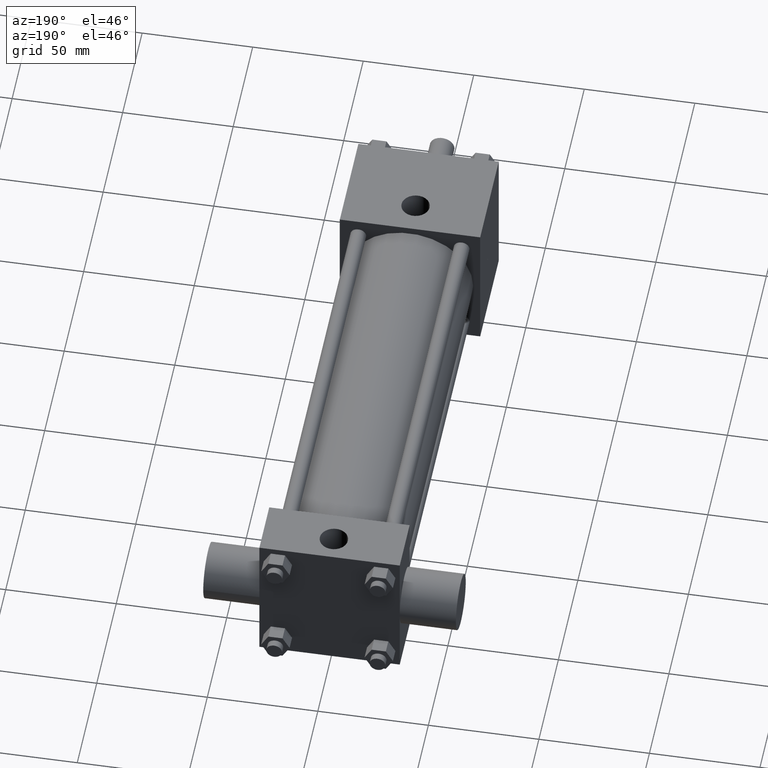
[diagram: clean part render]
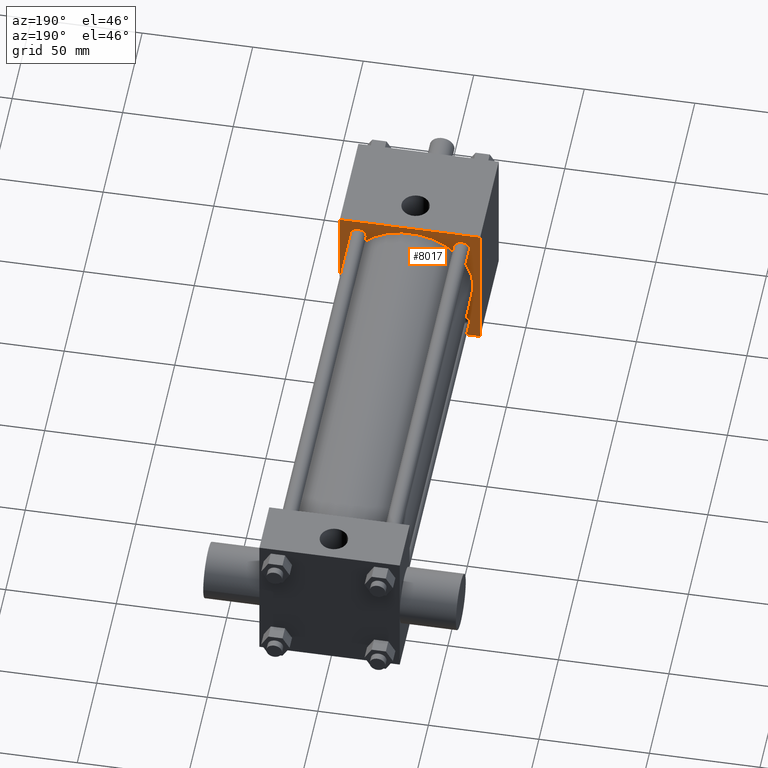
[diagram: same view with one face highlighted and labeled with its STEP entity id]
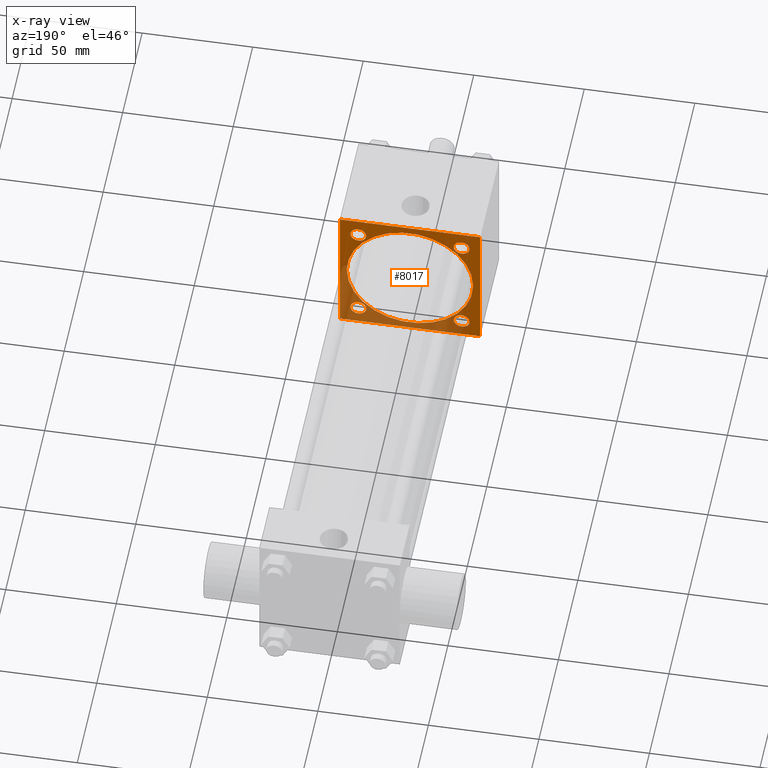
[diagram: x-ray of the same camera — body ghosted, the highlighted face saturated]
A machine part, auxiliary view. The second image highlights one B-rep face of the part: STEP entity #8017.
The next image is the same camera in x-ray: the body ghosted, the highlighted face saturated — about 37% of this face is hidden behind the body in this view.
In plain terms, the highlighted planar face has unit normal (0, 1, 0).
Its self-contained STEP definition (entity closure, byte-faithful):
#455=FACE_OUTER_BOUND('',#461,.T.);
#456=FACE_BOUND('',#462,.T.);
#457=FACE_BOUND('',#463,.T.);
#458=FACE_BOUND('',#464,.T.);
#459=FACE_BOUND('',#465,.T.);
#460=FACE_BOUND('',#466,.T.);
#461=EDGE_LOOP('',(#467));
#462=EDGE_LOOP('',(#476,#477,#478,#479));
#463=EDGE_LOOP('',(#508));
#464=EDGE_LOOP('',(#517));
#465=EDGE_LOOP('',(#526));
#466=EDGE_LOOP('',(#535));
#467=ORIENTED_EDGE('',*,*,#468,.F.);
#468=EDGE_CURVE('',#474,#474,#469,.T.);
#469=CIRCLE('',#470,2.857500000E+001);
#470=AXIS2_PLACEMENT_3D('',#471,#472,#473);
#471=CARTESIAN_POINT('',(0.000000000E+000,6.350000000E+001,0.000000000E+000));
#472=DIRECTION('',(0.0E+000,1.0E+000,0.0E+000));
#473=DIRECTION('',(1.0E+000,0.0E+000,0.0E+000));
#474=VERTEX_POINT('',#475);
#475=CARTESIAN_POINT('',(2.857500000E+001,6.350000000E+001,0.000000000E+000));
#476=ORIENTED_EDGE('',*,*,#480,.F.);
#477=ORIENTED_EDGE('',*,*,#489,.F.);
#478=ORIENTED_EDGE('',*,*,#496,.F.);
#479=ORIENTED_EDGE('',*,*,#503,.F.);
#480=EDGE_CURVE('',#485,#486,#481,.T.);
#481=LINE('',#482,#483);
#482=CARTESIAN_POINT('',(-3.175000000E+001,6.350000000E+001,-3.175000000E+001));
#483=VECTOR('',#484,1.0E+000);
#484=DIRECTION('',(1.0E+000,0.0E+000,0.0E+000));
#485=VERTEX_POINT('',#487);
#486=VERTEX_POINT('',#488);
#487=CARTESIAN_POINT('',(-3.175000000E+001,6.350000000E+001,-3.175000000E+001));
#488=CARTESIAN_POINT('',(3.175000000E+001,6.350000000E+001,-3.175000000E+001));
#489=EDGE_CURVE('',#494,#485,#490,.T.);
#490=LINE('',#491,#492);
#491=CARTESIAN_POINT('',(-3.175000000E+001,6.350000000E+001,3.175000000E+001));
#492=VECTOR('',#493,1.0E+000);
#493=DIRECTION('',(0.0E+000,0.0E+000,-1.0E+000));
#494=VERTEX_POINT('',#495);
#495=CARTESIAN_POINT('',(-3.175000000E+001,6.350000000E+001,3.175000000E+001));
#496=EDGE_CURVE('',#501,#494,#497,.T.);
#497=LINE('',#498,#499);
#498=CARTESIAN_POINT('',(3.175000000E+001,6.350000000E+001,3.175000000E+001));
#499=VECTOR('',#500,1.0E+000);
#500=DIRECTION('',(-1.0E+000,0.0E+000,0.0E+000));
#501=VERTEX_POINT('',#502);
#502=CARTESIAN_POINT('',(3.175000000E+001,6.350000000E+001,3.175000000E+001));
#503=EDGE_CURVE('',#486,#501,#504,.T.);
#504=LINE('',#505,#506);
#505=CARTESIAN_POINT('',(3.175000000E+001,6.350000000E+001,-3.175000000E+001));
#506=VECTOR('',#507,1.0E+000);
#507=DIRECTION('',(0.0E+000,0.0E+000,1.0E+000));
#508=ORIENTED_EDGE('',*,*,#509,.F.);
#509=EDGE_CURVE('',#515,#515,#510,.T.);
#510=CIRCLE('',#511,3.568700000E+000);
#511=AXIS2_PLACEMENT_3D('',#512,#513,#514);
#512=CARTESIAN_POINT('',(-2.336800000E+001,6.350000000E+001,2.336800000E+001));
#513=DIRECTION('',(0.0E+000,1.0E+000,0.0E+000));
#514=DIRECTION('',(1.0E+000,0.0E+000,0.0E+000));
#515=VERTEX_POINT('',#516);
#516=CARTESIAN_POINT('',(-1.979930000E+001,6.350000000E+001,2.336800000E+001));
#517=ORIENTED_EDGE('',*,*,#518,.F.);
#518=EDGE_CURVE('',#524,#524,#519,.T.);
#519=CIRCLE('',#520,3.568700000E+000);
#520=AXIS2_PLACEMENT_3D('',#521,#522,#523);
#521=CARTESIAN_POINT('',(-2.336800000E+001,6.350000000E+001,-2.336800000E+001));
#522=DIRECTION('',(0.0E+000,1.0E+000,0.0E+000));
#523=DIRECTION('',(1.0E+000,0.0E+000,0.0E+000));
#524=VERTEX_POINT('',#525);
#525=CARTESIAN_POINT('',(-1.979930000E+001,6.350000000E+001,-2.336800000E+001));
#526=ORIENTED_EDGE('',*,*,#527,.F.);
#527=EDGE_CURVE('',#533,#533,#528,.T.);
#528=CIRCLE('',#529,3.568700000E+000);
#529=AXIS2_PLACEMENT_3D('',#530,#531,#532);
#530=CARTESIAN_POINT('',(2.336800000E+001,6.350000000E+001,-2.336800000E+001));
#531=DIRECTION('',(0.0E+000,1.0E+000,0.0E+000));
#532=DIRECTION('',(1.0E+000,0.0E+000,0.0E+000));
#533=VERTEX_POINT('',#534);
#534=CARTESIAN_POINT('',(2.693670000E+001,6.350000000E+001,-2.336800000E+001));
#535=ORIENTED_EDGE('',*,*,#536,.T.);
#536=EDGE_CURVE('',#542,#542,#537,.T.);
#537=CIRCLE('',#538,3.568700000E+000);
#538=AXIS2_PLACEMENT_3D('',#539,#540,#541);
#539=CARTESIAN_POINT('',(2.336800000E+001,6.350000000E+001,2.336800000E+001));
#540=DIRECTION('',(0.0E+000,-1.0E+000,0.0E+000));
#541=DIRECTION('',(-1.0E+000,0.0E+000,0.0E+000));
#542=VERTEX_POINT('',#543);
#543=CARTESIAN_POINT('',(1.979930000E+001,6.350000000E+001,2.336800000E+001));
#544=PLANE('',#545);
#545=AXIS2_PLACEMENT_3D('',#546,#547,#548);
#546=CARTESIAN_POINT('',(-3.175000000E+001,6.350000000E+001,-3.175000000E+001));
#547=DIRECTION('',(0.0E+000,1.0E+000,0.0E+000));
#548=DIRECTION('',(0.0E+000,0.0E+000,1.0E+000));
#8017=ADVANCED_FACE('',(#455,#456,#457,#458,#459,#460),#544,.T.);